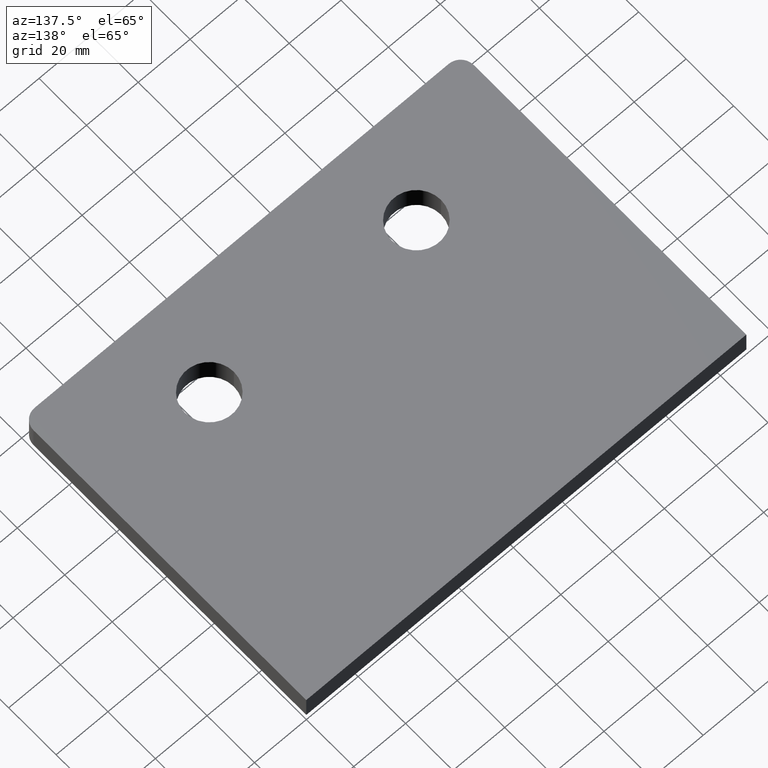
[diagram: clean part render]
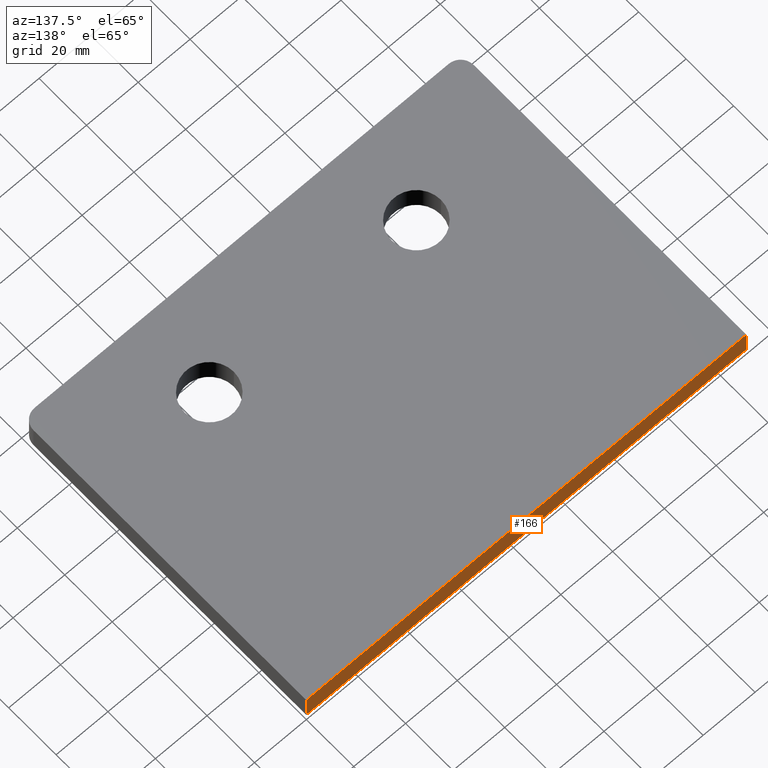
[diagram: same view with one face highlighted and labeled with its STEP entity id]
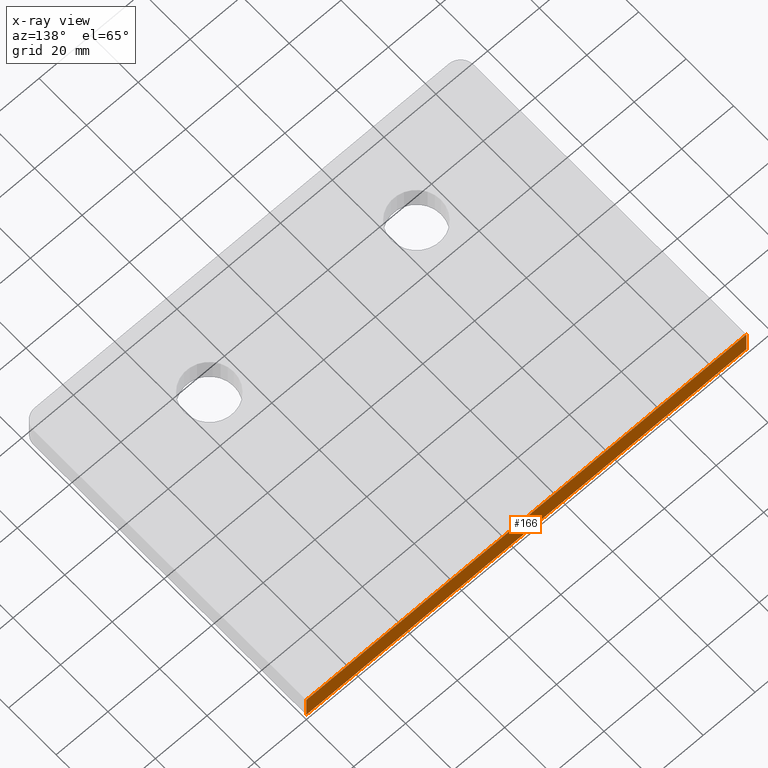
[diagram: x-ray of the same camera — body ghosted, the highlighted face saturated]
A machine part, auxiliary view. The second image highlights one B-rep face of the part: STEP entity #166.
The next image is the same camera in x-ray: the body ghosted, the highlighted face saturated — about 0% of this face is hidden behind the body in this view.
In plain terms, the highlighted planar face has unit normal (-0, 1, 0).
Its self-contained STEP definition (entity closure, byte-faithful):
#44 = LINE ( 'NONE', #70, #437 ) ;
#56 = LINE ( 'NONE', #222, #419 ) ;
#57 = VERTEX_POINT ( 'NONE', #359 ) ;
#59 = ORIENTED_EDGE ( 'NONE', *, *, #220, .T. ) ;
#60 = DIRECTION ( 'NONE',  ( 0.000000000000000000, 0.000000000000000000, 1.000000000000000000 ) ) ;
#70 = CARTESIAN_POINT ( 'NONE',  ( 9.754105943546810464E-31, 120.0000000000000000, -10.00000000000000000 ) ) ;
#89 = LINE ( 'NONE', #326, #452 ) ;
#149 = ORIENTED_EDGE ( 'NONE', *, *, #275, .F. ) ;
#166 = ADVANCED_FACE ( 'NONE', ( #250 ), #247, .T. ) ;
#182 = CARTESIAN_POINT ( 'NONE',  ( 9.754105943546810464E-31, 120.0000000000000000, -10.00000000000000000 ) ) ;
#187 = ORIENTED_EDGE ( 'NONE', *, *, #196, .T. ) ;
#196 = EDGE_CURVE ( 'NONE', #446, #277, #44, .T. ) ;
#220 = EDGE_CURVE ( 'NONE', #277, #57, #89, .T. ) ;
#222 = CARTESIAN_POINT ( 'NONE',  ( 9.754105943546810464E-31, 120.0000000000000000, -10.00000000000000000 ) ) ;
#247 = PLANE ( 'NONE',  #399 ) ;
#250 = FACE_OUTER_BOUND ( 'NONE', #339, .T. ) ;
#274 = ORIENTED_EDGE ( 'NONE', *, *, #296, .F. ) ;
#275 = EDGE_CURVE ( 'NONE', #406, #57, #409, .T. ) ;
#277 = VERTEX_POINT ( 'NONE', #381 ) ;
#292 = DIRECTION ( 'NONE',  ( 0.000000000000000000, 0.000000000000000000, 1.000000000000000000 ) ) ;
#296 = EDGE_CURVE ( 'NONE', #446, #406, #56, .T. ) ;
#299 = CARTESIAN_POINT ( 'NONE',  ( 9.754105943546810464E-31, 120.0000000000000000, 0.000000000000000000 ) ) ;
#308 = CARTESIAN_POINT ( 'NONE',  ( 9.754105943546810464E-31, 120.0000000000000000, 0.000000000000000000 ) ) ;
#317 = DIRECTION ( 'NONE',  ( -1.000000000000000000, -8.163404592832032733E-17, 0.000000000000000000 ) ) ;
#320 = DIRECTION ( 'NONE',  ( -8.163404592832032733E-17, 1.000000000000000000, 0.000000000000000000 ) ) ;
#326 = CARTESIAN_POINT ( 'NONE',  ( -170.0000000000000000, 119.9999999999999858, -10.00000000000000000 ) ) ;
#339 = EDGE_LOOP ( 'NONE', ( #149, #274, #187, #59 ) ) ;
#359 = CARTESIAN_POINT ( 'NONE',  ( -170.0000000000000000, 119.9999999999999858, 0.000000000000000000 ) ) ;
#379 = DIRECTION ( 'NONE',  ( -1.000000000000000000, -8.163404592832032733E-17, 0.000000000000000000 ) ) ;
#381 = CARTESIAN_POINT ( 'NONE',  ( -170.0000000000000000, 119.9999999999999858, -10.00000000000000000 ) ) ;
#386 = CARTESIAN_POINT ( 'NONE',  ( 9.754105943546810464E-31, 120.0000000000000000, -10.00000000000000000 ) ) ;
#399 = AXIS2_PLACEMENT_3D ( 'NONE', #182, #320, #317 ) ;
#400 = VECTOR ( 'NONE', #379, 1000.000000000000000 ) ;
#402 = DIRECTION ( 'NONE',  ( -1.000000000000000000, -8.163404592832032733E-17, 0.000000000000000000 ) ) ;
#406 = VERTEX_POINT ( 'NONE', #308 ) ;
#409 = LINE ( 'NONE', #299, #400 ) ;
#419 = VECTOR ( 'NONE', #60, 1000.000000000000000 ) ;
#437 = VECTOR ( 'NONE', #402, 1000.000000000000000 ) ;
#446 = VERTEX_POINT ( 'NONE', #386 ) ;
#452 = VECTOR ( 'NONE', #292, 1000.000000000000000 ) ;